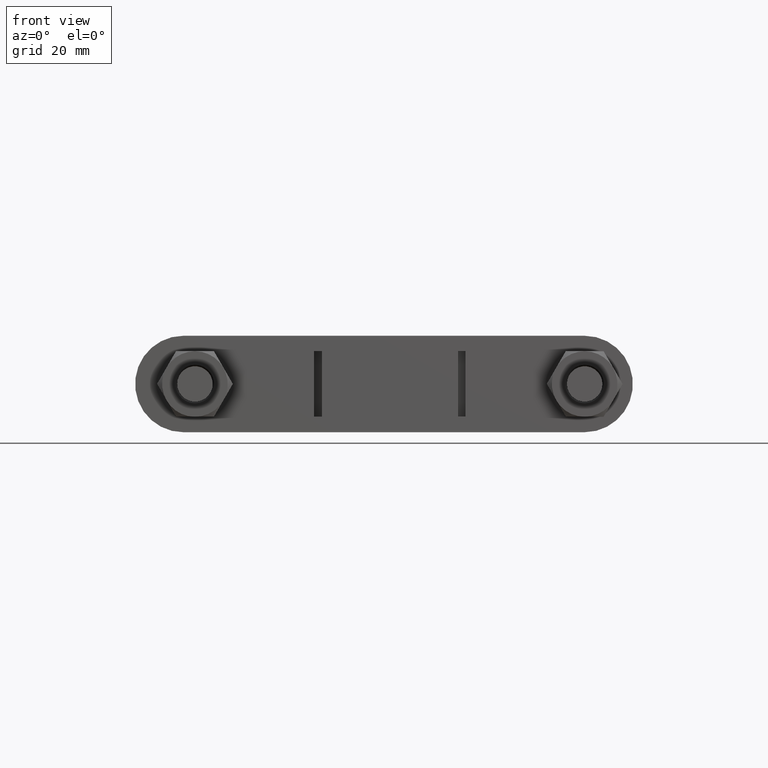
[diagram: clean part render]
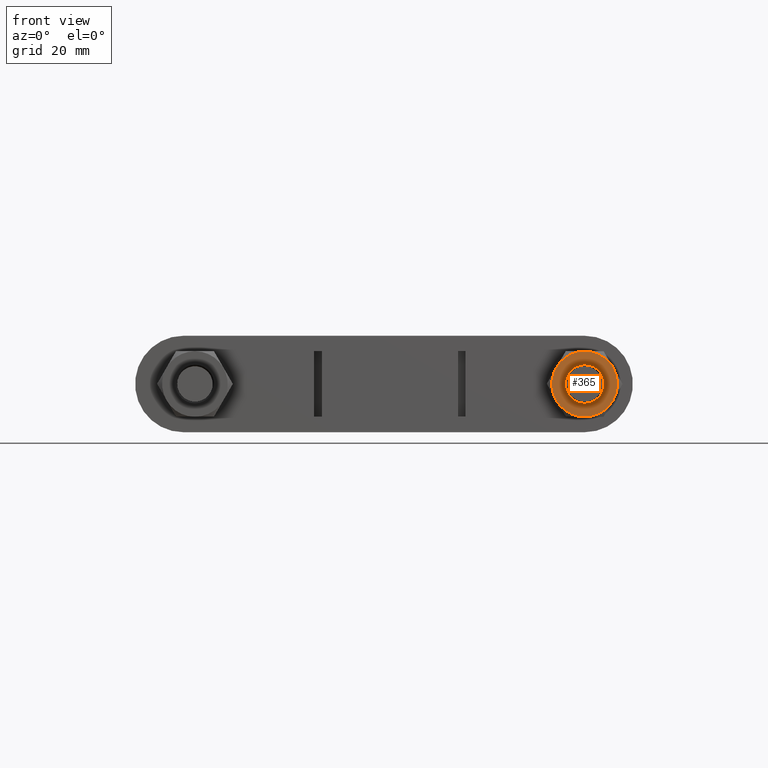
[diagram: same view with one face highlighted and labeled with its STEP entity id]
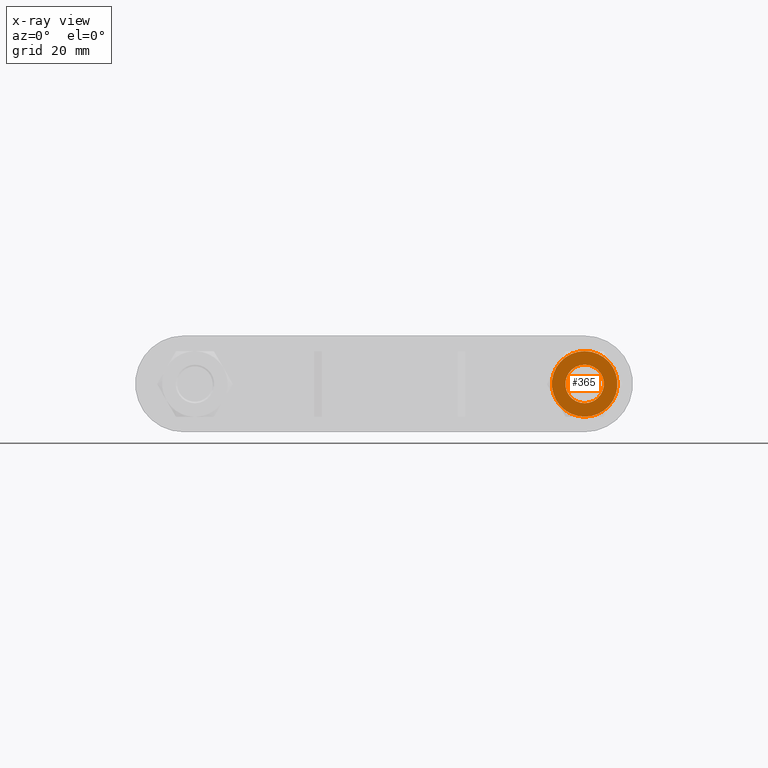
[diagram: x-ray of the same camera — body ghosted, the highlighted face saturated]
A machine part, front view. The second image highlights one B-rep face of the part: STEP entity #365.
The next image is the same camera in x-ray: the body ghosted, the highlighted face saturated — about 0% of this face is hidden behind the body in this view.
In plain terms, the highlighted planar face has unit normal (0, 1, 0).
Its self-contained STEP definition (entity closure, byte-faithful):
#365 = ADVANCED_FACE( '', ( #603, #604 ), #605, .F. );
#603 = FACE_OUTER_BOUND( '', #1670, .T. );
#604 = FACE_BOUND( '', #1671, .T. );
#605 = PLANE( '', #1672 );
#1670 = EDGE_LOOP( '', ( #2411, #2412, #2413, #2414, #2415, #2416 ) );
#1671 = EDGE_LOOP( '', ( #2417 ) );
#1672 = AXIS2_PLACEMENT_3D( '', #2418, #2419, #2420 );
#2411 = ORIENTED_EDGE( '', *, *, #2719, .F. );
#2412 = ORIENTED_EDGE( '', *, *, #2725, .F. );
#2413 = ORIENTED_EDGE( '', *, *, #2701, .F. );
#2414 = ORIENTED_EDGE( '', *, *, #2716, .F. );
#2415 = ORIENTED_EDGE( '', *, *, #2689, .F. );
#2416 = ORIENTED_EDGE( '', *, *, #2726, .F. );
#2417 = ORIENTED_EDGE( '', *, *, #2727, .T. );
#2418 = CARTESIAN_POINT( '', ( 50.5000000000000, 22.0000000000010, 1.40217427512668E-015 ) );
#2419 = DIRECTION( '', ( 1.49966072182213E-032, 1.00000000000000, 6.12303176911189E-017 ) );
#2420 = DIRECTION( '', ( 1.00000000000000, 2.73691106313441E-048, -2.44921270764475E-016 ) );
#2689 = EDGE_CURVE( '', #3044, #3046, #3047, .T. );
#2701 = EDGE_CURVE( '', #3061, #3068, #3069, .T. );
#2716 = EDGE_CURVE( '', #3046, #3061, #3095, .T. );
#2719 = EDGE_CURVE( '', #3099, #3100, #3101, .T. );
#2725 = EDGE_CURVE( '', #3068, #3099, #3109, .T. );
#2726 = EDGE_CURVE( '', #3100, #3044, #3110, .T. );
#2727 = EDGE_CURVE( '', #3111, #3111, #3112, .T. );
#3044 = VERTEX_POINT( '', #3834 );
#3046 = VERTEX_POINT( '', #3841 );
#3047 = CIRCLE( '', #3842, 8.50000000000000 );
#3061 = VERTEX_POINT( '', #3863 );
#3068 = VERTEX_POINT( '', #3882 );
#3069 = CIRCLE( '', #3883, 8.50000000000000 );
#3095 = CIRCLE( '', #3921, 8.50000000000000 );
#3099 = VERTEX_POINT( '', #3930 );
#3100 = VERTEX_POINT( '', #3931 );
#3101 = CIRCLE( '', #3932, 8.50000000000000 );
#3109 = CIRCLE( '', #3952, 8.50000000000000 );
#3110 = CIRCLE( '', #3953, 8.50000000000000 );
#3111 = VERTEX_POINT( '', #3954 );
#3112 = CIRCLE( '', #3955, 5.00000000000000 );
#3834 = CARTESIAN_POINT( '', ( 43.1387840675828, 22.0000000000010, -4.24999999956796 ) );
#3841 = CARTESIAN_POINT( '', ( 43.1387840680816, 22.0000000000009, 4.25000000043157 ) );
#3842 = AXIS2_PLACEMENT_3D( '', #4254, #4255, #4256 );
#3863 = CARTESIAN_POINT( '', ( 50.5000000004993, 22.0000000000006, 8.49999999999933 ) );
#3882 = CARTESIAN_POINT( '', ( 57.8612159324172, 22.0000000000010, 4.24999999956796 ) );
#3883 = AXIS2_PLACEMENT_3D( '', #4273, #4274, #4275 );
#3921 = AXIS2_PLACEMENT_3D( '', #4301, #4302, #4303 );
#3930 = CARTESIAN_POINT( '', ( 57.8612159319184, 22.0000000000009, -4.25000000043157 ) );
#3931 = CARTESIAN_POINT( '', ( 50.4999999997504, 22.0000000000010, -8.50000000014347 ) );
#3932 = AXIS2_PLACEMENT_3D( '', #4307, #4308, #4309 );
#3952 = AXIS2_PLACEMENT_3D( '', #4315, #4316, #4317 );
#3953 = AXIS2_PLACEMENT_3D( '', #4318, #4319, #4320 );
#3954 = CARTESIAN_POINT( '', ( 50.5000000000000, 22.0000000000010, 5.00000000000000 ) );
#3955 = AXIS2_PLACEMENT_3D( '', #4321, #4322, #4323 );
#4254 = CARTESIAN_POINT( '', ( 50.5000000000000, 22.0000000000010, 1.40217427512668E-015 ) );
#4255 = DIRECTION( '', ( 1.49966072182214E-032, 1.00000000000000, 6.12303176911189E-017 ) );
#4256 = DIRECTION( '', ( 0.000000000000000, -6.12303176911189E-017, 1.00000000000000 ) );
#4273 = CARTESIAN_POINT( '', ( 50.5000000000000, 22.0000000000010, 1.40217427512668E-015 ) );
#4274 = DIRECTION( '', ( 1.49966072182214E-032, 1.00000000000000, 6.12303176911189E-017 ) );
#4275 = DIRECTION( '', ( 0.000000000000000, -6.12303176911189E-017, 1.00000000000000 ) );
#4301 = CARTESIAN_POINT( '', ( 50.5000000000000, 22.0000000000010, 1.40217427512668E-015 ) );
#4302 = DIRECTION( '', ( 1.49966072182214E-032, 1.00000000000000, 6.12303176911189E-017 ) );
#4303 = DIRECTION( '', ( 0.000000000000000, -6.12303176911189E-017, 1.00000000000000 ) );
#4307 = CARTESIAN_POINT( '', ( 50.5000000000000, 22.0000000000010, 1.40217427512668E-015 ) );
#4308 = DIRECTION( '', ( 1.49966072182214E-032, 1.00000000000000, 6.12303176911189E-017 ) );
#4309 = DIRECTION( '', ( 0.000000000000000, -6.12303176911189E-017, 1.00000000000000 ) );
#4315 = CARTESIAN_POINT( '', ( 50.5000000000000, 22.0000000000010, 1.40217427512668E-015 ) );
#4316 = DIRECTION( '', ( 1.49966072182214E-032, 1.00000000000000, 6.12303176911189E-017 ) );
#4317 = DIRECTION( '', ( 0.000000000000000, -6.12303176911189E-017, 1.00000000000000 ) );
#4318 = CARTESIAN_POINT( '', ( 50.5000000000000, 22.0000000000010, 1.40217427512668E-015 ) );
#4319 = DIRECTION( '', ( 1.49966072182214E-032, 1.00000000000000, 6.12303176911189E-017 ) );
#4320 = DIRECTION( '', ( 0.000000000000000, -6.12303176911189E-017, 1.00000000000000 ) );
#4321 = CARTESIAN_POINT( '', ( 50.5000000000000, 22.0000000000010, 1.40217427512668E-015 ) );
#4322 = DIRECTION( '', ( 1.49966072182213E-032, 1.00000000000000, 6.12303176911189E-017 ) );
#4323 = DIRECTION( '', ( 0.000000000000000, -6.12303176911189E-017, 1.00000000000000 ) );